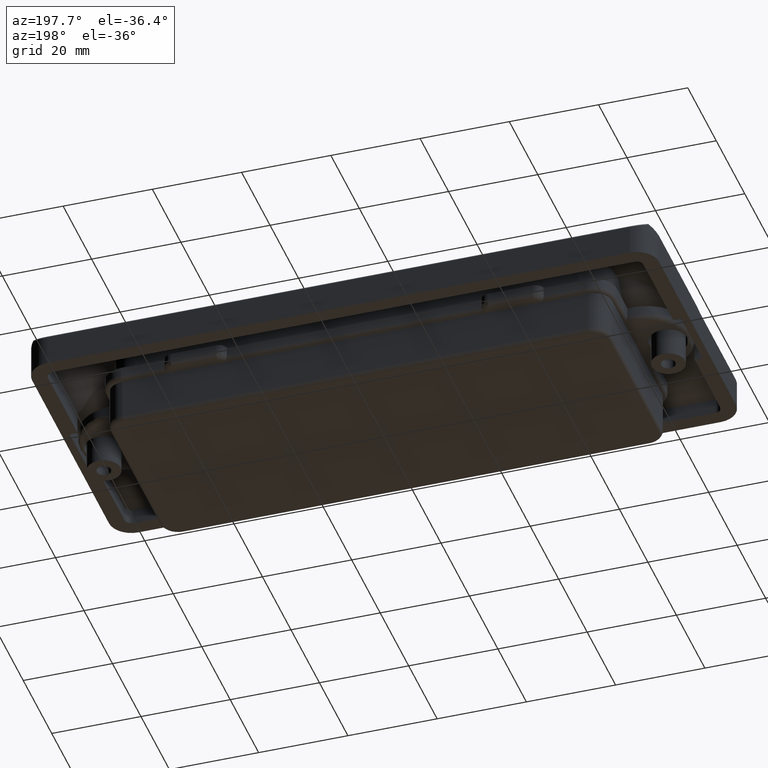
[diagram: clean part render]
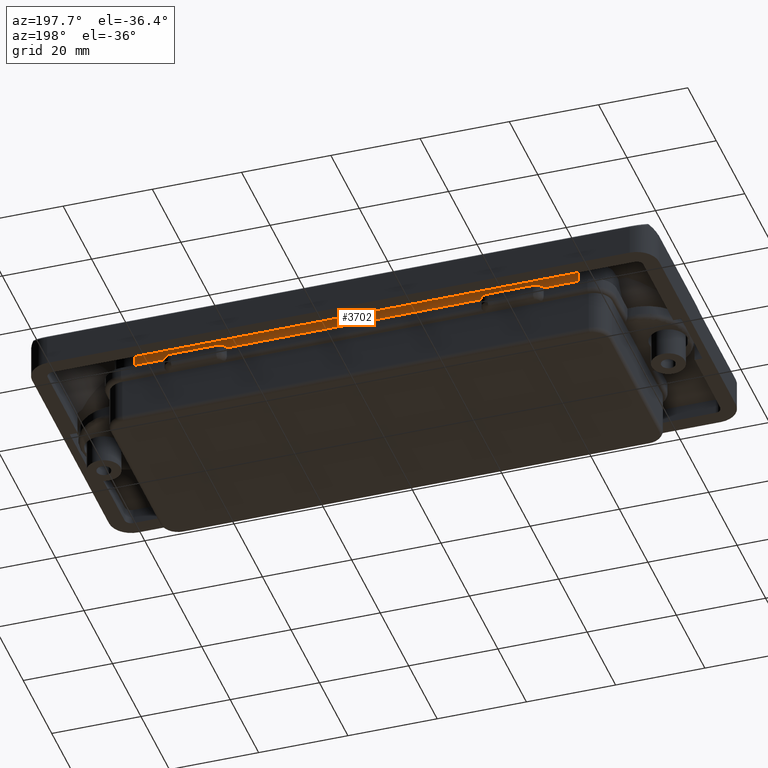
[diagram: same view with one face highlighted and labeled with its STEP entity id]
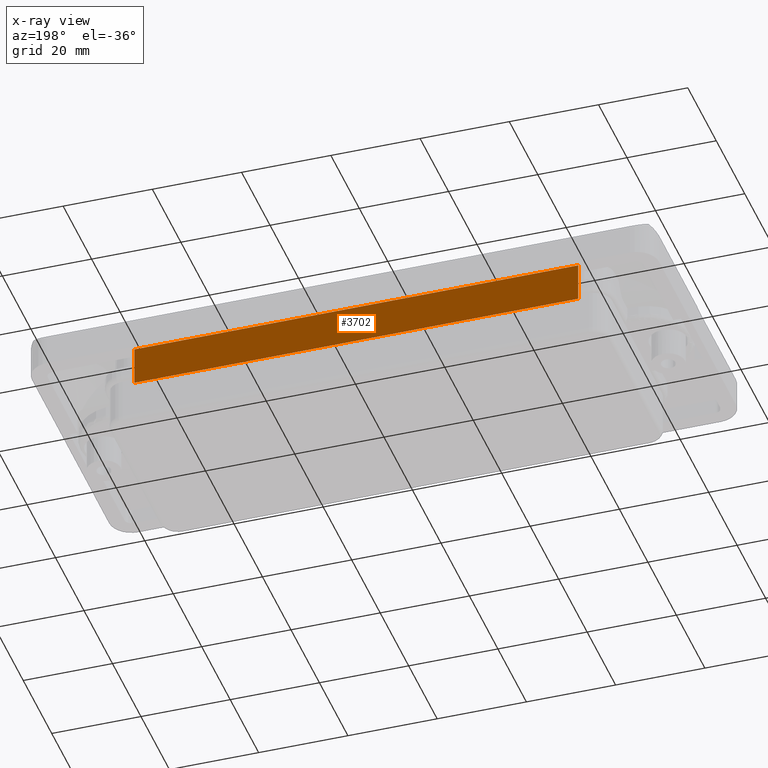
[diagram: x-ray of the same camera — body ghosted, the highlighted face saturated]
A machine part, auxiliary view. The second image highlights one B-rep face of the part: STEP entity #3702.
The next image is the same camera in x-ray: the body ghosted, the highlighted face saturated — about 0% of this face is hidden behind the body in this view.
In plain terms, the highlighted planar face has unit normal (0, 1, 0).
Its self-contained STEP definition (entity closure, byte-faithful):
#211=LINE('',#6785,#497);
#213=LINE('',#6791,#499);
#214=LINE('',#6793,#500);
#215=LINE('',#6794,#501);
#497=VECTOR('',#4502,8.86011355401009);
#499=VECTOR('',#4508,99.5);
#500=VECTOR('',#4509,8.8601135540101);
#501=VECTOR('',#4510,99.5);
#743=PLANE('',#3968);
#847=FACE_OUTER_BOUND('',#1085,.T.);
#1085=EDGE_LOOP('',(#2691,#2692,#2693,#2694));
#1675=VERTEX_POINT('',#6772);
#1677=VERTEX_POINT('',#6784);
#1679=VERTEX_POINT('',#6790);
#1680=VERTEX_POINT('',#6792);
#2058=EDGE_CURVE('',#1677,#1675,#211,.T.);
#2061=EDGE_CURVE('',#1679,#1675,#213,.T.);
#2062=EDGE_CURVE('',#1680,#1679,#214,.T.);
#2063=EDGE_CURVE('',#1677,#1680,#215,.T.);
#2691=ORIENTED_EDGE('',*,*,#2061,.F.);
#2692=ORIENTED_EDGE('',*,*,#2062,.F.);
#2693=ORIENTED_EDGE('',*,*,#2063,.F.);
#2694=ORIENTED_EDGE('',*,*,#2058,.T.);
#3702=ADVANCED_FACE('',(#847),#743,.T.);
#3968=AXIS2_PLACEMENT_3D('',#6789,#4506,#4507);
#4502=DIRECTION('',(0.,0.,1.));
#4506=DIRECTION('center_axis',(2.2316040695983E-16,1.,1.88121688314538E-16));
#4507=DIRECTION('ref_axis',(-1.,3.5527136788005E-16,0.));
#4508=DIRECTION('',(-1.,0.,0.));
#4509=DIRECTION('',(0.,0.,1.));
#4510=DIRECTION('',(1.,-2.2316040695983E-16,0.));
#6772=CARTESIAN_POINT('',(-49.75,19.5,8.86011355401009));
#6784=CARTESIAN_POINT('',(-49.75,19.5,0.));
#6785=CARTESIAN_POINT('',(-49.75,19.5,0.));
#6789=CARTESIAN_POINT('Origin',(49.75,19.5,3.50000000000001));
#6790=CARTESIAN_POINT('',(49.75,19.5,8.8601135540101));
#6791=CARTESIAN_POINT('',(70.25,19.5,8.8601135540101));
#6792=CARTESIAN_POINT('',(49.75,19.5,0.));
#6793=CARTESIAN_POINT('',(49.75,19.5,0.));
#6794=CARTESIAN_POINT('',(-49.75,19.5,0.));